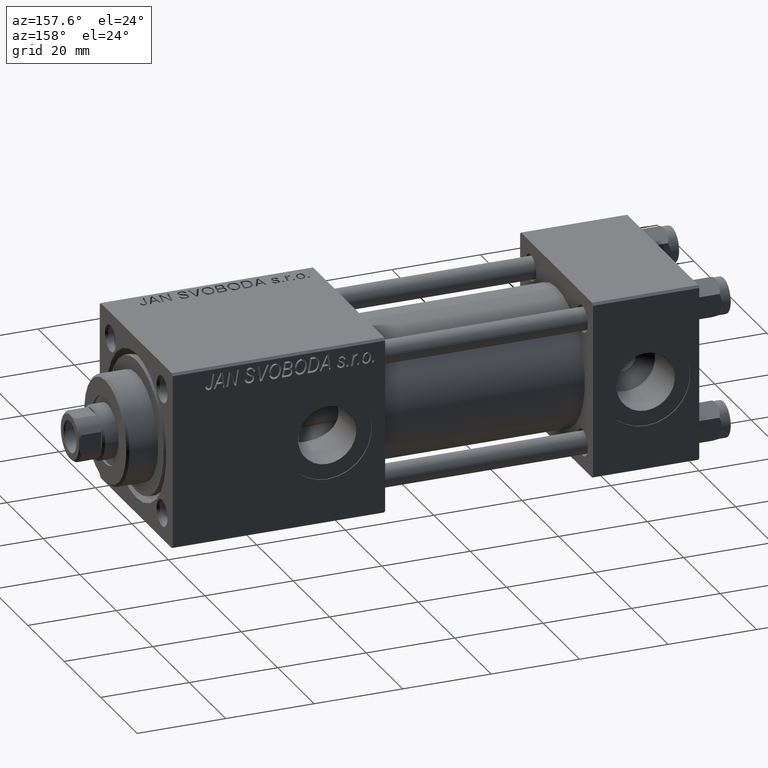
[diagram: clean part render]
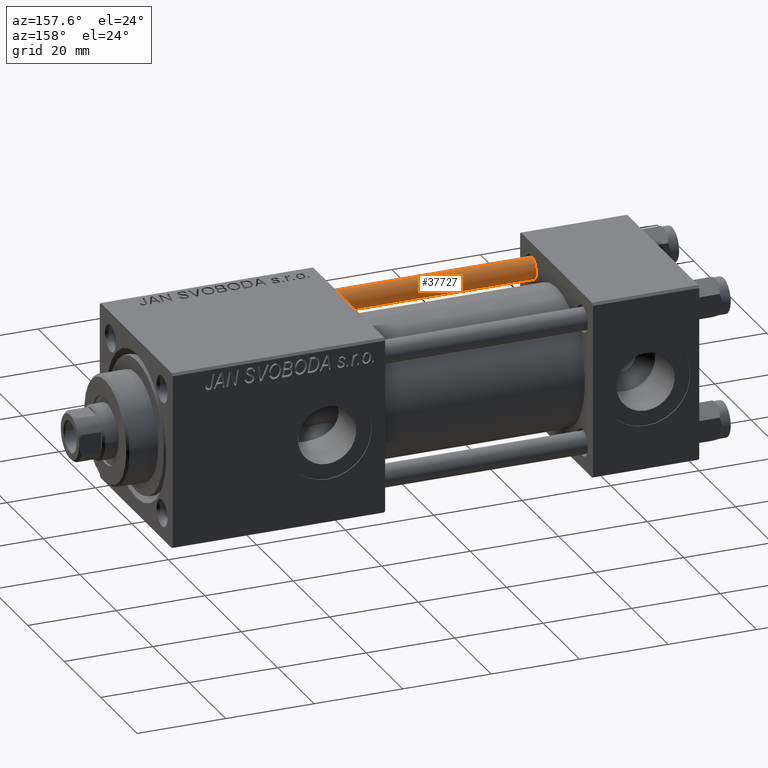
[diagram: same view with one face highlighted and labeled with its STEP entity id]
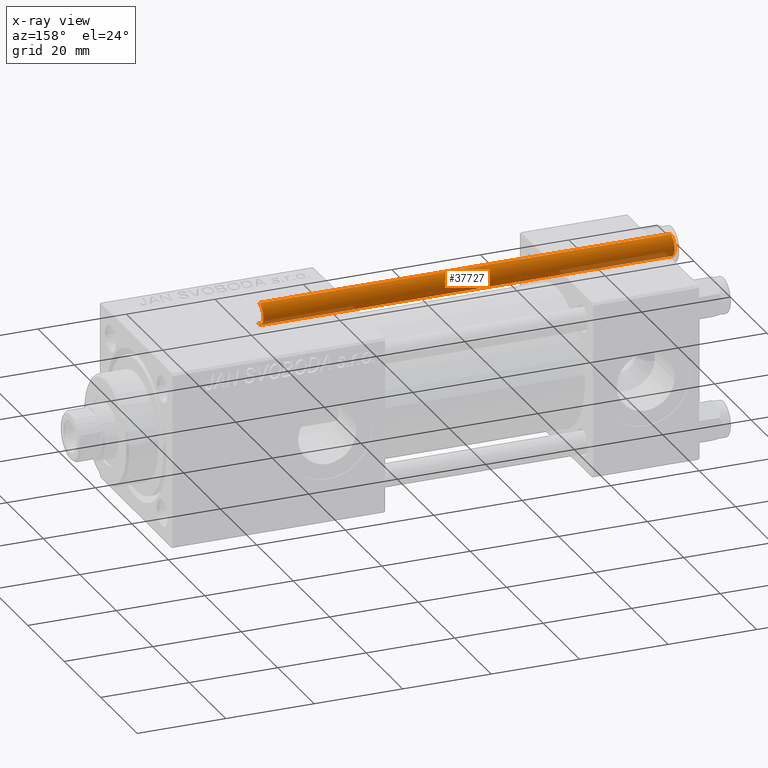
[diagram: x-ray of the same camera — body ghosted, the highlighted face saturated]
A machine part, auxiliary view. The second image highlights one B-rep face of the part: STEP entity #37727.
The next image is the same camera in x-ray: the body ghosted, the highlighted face saturated — about 10% of this face is hidden behind the body in this view.
In plain terms, the highlighted cylindrical surface (edge-blend (fillet) strip) has radius 2.5 mm, axis along (1, 0, -0).
Its self-contained STEP definition (entity closure, byte-faithful):
#3768 = CARTESIAN_POINT ( 'NONE',  ( -2.500000000000000000, 0.000000000000000000, 93.50000000000001421 ) ) ;
#4333 = LINE ( 'NONE', #31208, #35386 ) ;
#4737 = DIRECTION ( 'NONE',  ( 1.000000000000000000, 0.000000000000000000, 0.000000000000000000 ) ) ;
#4821 = ORIENTED_EDGE ( 'NONE', *, *, #40454, .T. ) ;
#5366 = EDGE_CURVE ( 'NONE', #20869, #13042, #30703, .T. ) ;
#8193 = ORIENTED_EDGE ( 'NONE', *, *, #42935, .T. ) ;
#8844 = AXIS2_PLACEMENT_3D ( 'NONE', #31784, #47261, #28988 ) ;
#10472 = DIRECTION ( 'NONE',  ( -0.000000000000000000, -0.000000000000000000, -1.000000000000000000 ) ) ;
#10718 = DIRECTION ( 'NONE',  ( -1.000000000000000000, 0.000000000000000000, 0.000000000000000000 ) ) ;
#11460 = AXIS2_PLACEMENT_3D ( 'NONE', #45209, #10472, #10718 ) ;
#13042 = VERTEX_POINT ( 'NONE', #3768 ) ;
#13874 = CARTESIAN_POINT ( 'NONE',  ( -2.500000000000000000, 0.000000000000000000, 94.00000000000000000 ) ) ;
#14113 = CIRCLE ( 'NONE', #17323, 2.500000000000000000 ) ;
#15953 = CARTESIAN_POINT ( 'NONE',  ( 2.500000000000000000, 3.061616997868383141E-16, 93.50000000000001421 ) ) ;
#17323 = AXIS2_PLACEMENT_3D ( 'NONE', #47077, #23274, #4737 ) ;
#19191 = EDGE_LOOP ( 'NONE', ( #38513, #40570, #4821, #8193 ) ) ;
#20869 = VERTEX_POINT ( 'NONE', #15953 ) ;
#21080 = CARTESIAN_POINT ( 'NONE',  ( 2.500000000000000000, 3.061616997868383141E-16, 0.5000000000000004441 ) ) ;
#23274 = DIRECTION ( 'NONE',  ( -0.000000000000000000, -0.000000000000000000, 1.000000000000000000 ) ) ;
#25010 = DIRECTION ( 'NONE',  ( -0.000000000000000000, -0.000000000000000000, -1.000000000000000000 ) ) ;
#26423 = CYLINDRICAL_SURFACE ( 'NONE', #11460, 2.500000000000000000 ) ;
#27964 = VERTEX_POINT ( 'NONE', #29380 ) ;
#28988 = DIRECTION ( 'NONE',  ( 1.000000000000000000, 0.000000000000000000, 0.000000000000000000 ) ) ;
#29380 = CARTESIAN_POINT ( 'NONE',  ( -2.500000000000000000, 0.000000000000000000, 0.5000000000000004441 ) ) ;
#30703 = CIRCLE ( 'NONE', #8844, 2.500000000000000000 ) ;
#30996 = VECTOR ( 'NONE', #25010, 1000.000000000000000 ) ;
#31208 = CARTESIAN_POINT ( 'NONE',  ( 2.500000000000000000, 3.061616997868383141E-16, 94.00000000000000000 ) ) ;
#31784 = CARTESIAN_POINT ( 'NONE',  ( 0.000000000000000000, 0.000000000000000000, 93.50000000000001421 ) ) ;
#32846 = EDGE_CURVE ( 'NONE', #20869, #37937, #4333, .T. ) ;
#35386 = VECTOR ( 'NONE', #46184, 1000.000000000000000 ) ;
#37727 = ADVANCED_FACE ( 'NONE', ( #45960 ), #26423, .T. ) ;
#37937 = VERTEX_POINT ( 'NONE', #21080 ) ;
#38513 = ORIENTED_EDGE ( 'NONE', *, *, #32846, .F. ) ;
#40454 = EDGE_CURVE ( 'NONE', #13042, #27964, #40743, .T. ) ;
#40570 = ORIENTED_EDGE ( 'NONE', *, *, #5366, .T. ) ;
#40743 = LINE ( 'NONE', #13874, #30996 ) ;
#42935 = EDGE_CURVE ( 'NONE', #27964, #37937, #14113, .T. ) ;
#45209 = CARTESIAN_POINT ( 'NONE',  ( 0.000000000000000000, 0.000000000000000000, 94.00000000000000000 ) ) ;
#45960 = FACE_OUTER_BOUND ( 'NONE', #19191, .T. ) ;
#46184 = DIRECTION ( 'NONE',  ( -0.000000000000000000, -0.000000000000000000, -1.000000000000000000 ) ) ;
#47077 = CARTESIAN_POINT ( 'NONE',  ( 0.000000000000000000, 0.000000000000000000, 0.5000000000000004441 ) ) ;
#47261 = DIRECTION ( 'NONE',  ( 0.000000000000000000, 0.000000000000000000, -1.000000000000000000 ) ) ;